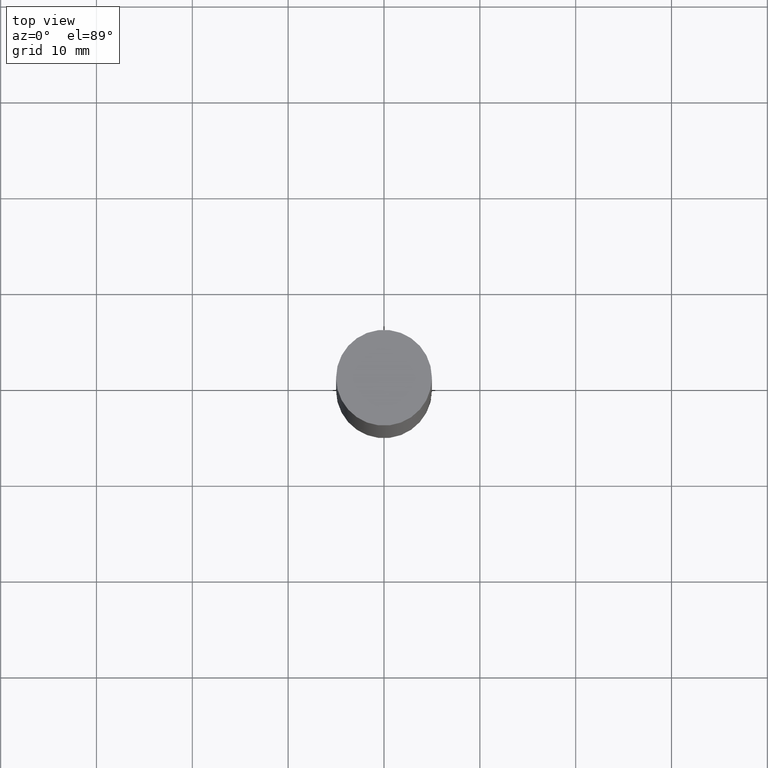
[diagram: clean part render]
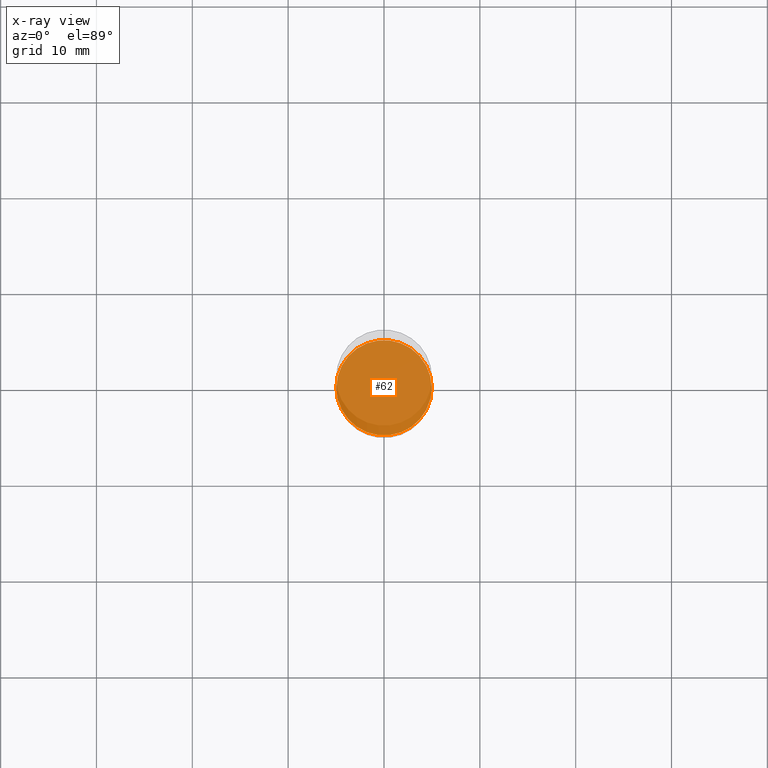
[diagram: x-ray — body ghosted, one internal face saturated and labeled with its STEP entity id]
A machine part, top view, then the same camera in x-ray: the body is ghosted and one INTERNAL B-rep face — a face not visible from any outside direction — is saturated and labeled: STEP entity #62.
In plain terms, the highlighted planar face has unit normal (-0, 0, 1).
Its self-contained STEP definition (entity closure, byte-faithful):
#27 = DIRECTION ( 'NONE',  ( 1.000000000000000000, -6.982962677686262766E-15, 0.000000000000000000 ) ) ;
#62 = ADVANCED_FACE ( 'NONE', ( #316 ), #527, .F. ) ;
#129 = ORIENTED_EDGE ( 'NONE', *, *, #133, .F. ) ;
#133 = EDGE_CURVE ( 'NONE', #443, #629, #547, .T. ) ;
#162 = DIRECTION ( 'NONE',  ( -2.445468806185136597E-29, 3.491481338843145583E-15, 1.000000000000000000 ) ) ;
#166 = AXIS2_PLACEMENT_3D ( 'NONE', #230, #452, #27 ) ;
#170 = CARTESIAN_POINT ( 'NONE',  ( 5.873037884934223228E-29, -8.385141583365697263E-15, -2.401599999999999735 ) ) ;
#186 = CARTESIAN_POINT ( 'NONE',  ( -0.1958499999999999963, -6.988245181031318870E-15, -2.401599999999999735 ) ) ;
#220 = ORIENTED_EDGE ( 'NONE', *, *, #409, .F. ) ;
#230 = CARTESIAN_POINT ( 'NONE',  ( 5.873037884934223228E-29, -8.385141583365697263E-15, -2.401599999999999735 ) ) ;
#261 = EDGE_LOOP ( 'NONE', ( #129, #220 ) ) ;
#262 = AXIS2_PLACEMENT_3D ( 'NONE', #476, #162, #481 ) ;
#269 = DIRECTION ( 'NONE',  ( 1.000000000000000000, -6.982962677686265922E-15, 4.876176775795935793E-29 ) ) ;
#282 = CARTESIAN_POINT ( 'NONE',  ( 0.1958499999999999963, -9.752754823790552857E-15, -2.401599999999999735 ) ) ;
#316 = FACE_OUTER_BOUND ( 'NONE', #261, .T. ) ;
#334 = AXIS2_PLACEMENT_3D ( 'NONE', #170, #517, #269 ) ;
#373 = CIRCLE ( 'NONE', #166, 0.1958499999999999963 ) ;
#409 = EDGE_CURVE ( 'NONE', #629, #443, #373, .T. ) ;
#443 = VERTEX_POINT ( 'NONE', #282 ) ;
#452 = DIRECTION ( 'NONE',  ( -2.445468806185136597E-29, 3.491481338843145583E-15, 1.000000000000000000 ) ) ;
#476 = CARTESIAN_POINT ( 'NONE',  ( 5.873037884934223228E-29, -8.385141583365697263E-15, -2.401599999999999735 ) ) ;
#481 = DIRECTION ( 'NONE',  ( 1.000000000000000000, -6.982962677686262766E-15, 0.000000000000000000 ) ) ;
#517 = DIRECTION ( 'NONE',  ( -2.438088387897960049E-29, 3.491481338843145188E-15, 1.000000000000000000 ) ) ;
#527 = PLANE ( 'NONE',  #334 ) ;
#547 = CIRCLE ( 'NONE', #262, 0.1958499999999999963 ) ;
#629 = VERTEX_POINT ( 'NONE', #186 ) ;